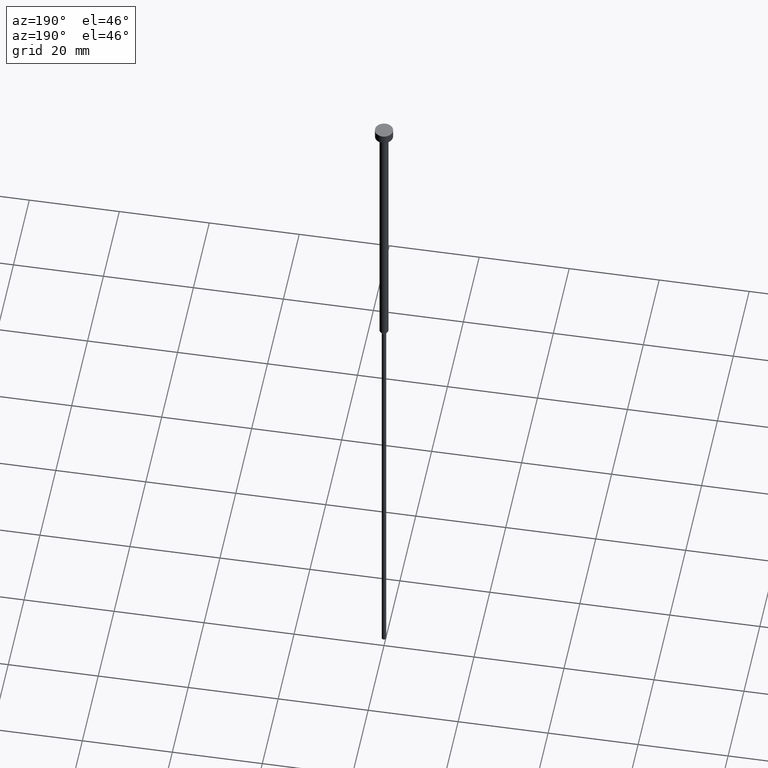
[diagram: clean part render]
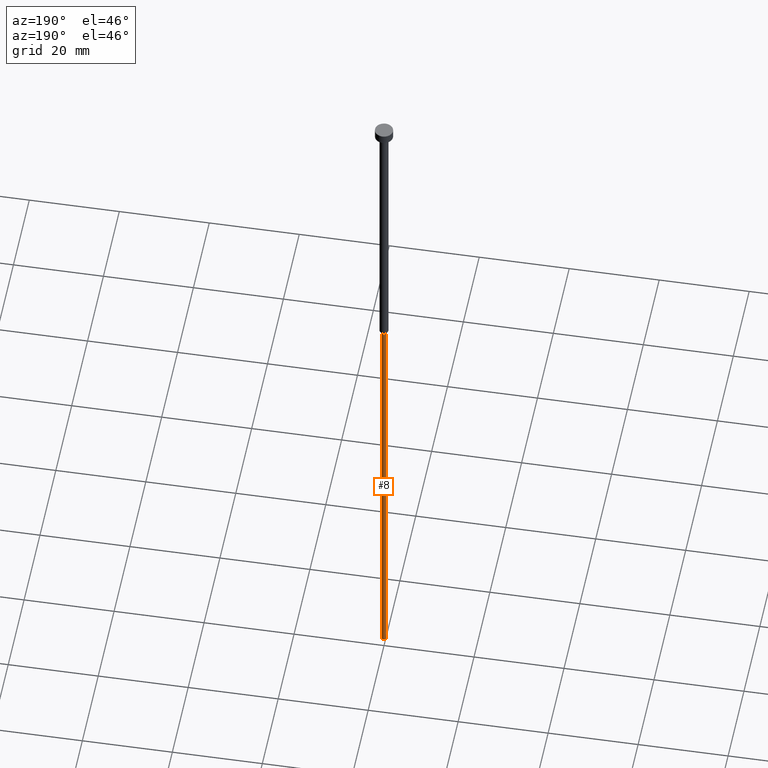
[diagram: same view with one face highlighted and labeled with its STEP entity id]
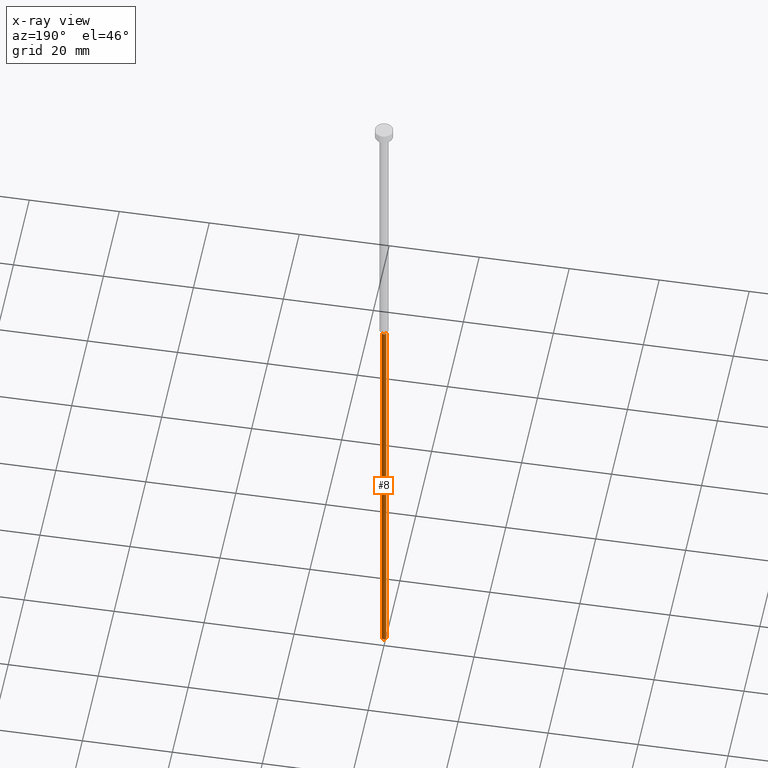
[diagram: x-ray of the same camera — body ghosted, the highlighted face saturated]
A machine part, auxiliary view. The second image highlights one B-rep face of the part: STEP entity #8.
The next image is the same camera in x-ray: the body ghosted, the highlighted face saturated — about 0% of this face is hidden behind the body in this view.
In plain terms, the highlighted cylindrical surface (edge-blend (fillet) strip) has radius 0.5 mm, axis along (-0, -0, 1).
Its self-contained STEP definition (entity closure, byte-faithful):
#3 = AXIS2_PLACEMENT_3D ( 'NONE', #47, #158, #269 ) ;
#8 = ADVANCED_FACE ( 'NONE', ( #301 ), #300, .T. ) ;
#19 = LINE ( 'NONE', #130, #311 ) ;
#36 = LINE ( 'NONE', #95, #260 ) ;
#39 = VERTEX_POINT ( 'NONE', #297 ) ;
#47 = CARTESIAN_POINT ( 'NONE',  ( 0.000000000000000000, 0.000000000000000000, -63.86602540378444104 ) ) ;
#57 = DIRECTION ( 'NONE',  ( -0.000000000000000000, -0.000000000000000000, 1.000000000000000000 ) ) ;
#95 = CARTESIAN_POINT ( 'NONE',  ( 0.5000000000000000000, 0.000000000000000000, 0.000000000000000000 ) ) ;
#96 = ORIENTED_EDGE ( 'NONE', *, *, #222, .T. ) ;
#104 = DIRECTION ( 'NONE',  ( -0.000000000000000000, -0.000000000000000000, 1.000000000000000000 ) ) ;
#109 = CARTESIAN_POINT ( 'NONE',  ( 0.000000000000000000, 0.000000000000000000, 0.000000000000000000 ) ) ;
#124 = VERTEX_POINT ( 'NONE', #243 ) ;
#130 = CARTESIAN_POINT ( 'NONE',  ( -0.5000000000000000000, 6.123233995736766036E-17, 0.000000000000000000 ) ) ;
#140 = EDGE_CURVE ( 'NONE', #124, #234, #291, .T. ) ;
#143 = EDGE_CURVE ( 'NONE', #289, #234, #19, .T. ) ;
#144 = CARTESIAN_POINT ( 'NONE',  ( 0.000000000000000000, 0.000000000000000000, -160.0000000000000000 ) ) ;
#154 = AXIS2_PLACEMENT_3D ( 'NONE', #109, #104, #191 ) ;
#158 = DIRECTION ( 'NONE',  ( -0.000000000000000000, -0.000000000000000000, 1.000000000000000000 ) ) ;
#168 = CARTESIAN_POINT ( 'NONE',  ( -0.5000000000000000000, 6.123233995736766036E-17, -160.0000000000000000 ) ) ;
#191 = DIRECTION ( 'NONE',  ( 1.000000000000000000, 0.000000000000000000, 0.000000000000000000 ) ) ;
#202 = DIRECTION ( 'NONE',  ( 1.000000000000000000, 0.000000000000000000, 0.000000000000000000 ) ) ;
#205 = EDGE_LOOP ( 'NONE', ( #96, #319, #207, #221 ) ) ;
#207 = ORIENTED_EDGE ( 'NONE', *, *, #140, .F. ) ;
#216 = EDGE_CURVE ( 'NONE', #39, #124, #36, .T. ) ;
#221 = ORIENTED_EDGE ( 'NONE', *, *, #216, .F. ) ;
#222 = EDGE_CURVE ( 'NONE', #39, #289, #249, .T. ) ;
#234 = VERTEX_POINT ( 'NONE', #253 ) ;
#243 = CARTESIAN_POINT ( 'NONE',  ( 0.5000000000000000000, 0.000000000000000000, -63.86602540378444104 ) ) ;
#249 = CIRCLE ( 'NONE', #340, 0.5000000000000000000 ) ;
#253 = CARTESIAN_POINT ( 'NONE',  ( -0.5000000000000000000, 6.123233995736766036E-17, -63.86602540378444104 ) ) ;
#260 = VECTOR ( 'NONE', #343, 1000.000000000000000 ) ;
#269 = DIRECTION ( 'NONE',  ( 1.000000000000000000, 0.000000000000000000, 0.000000000000000000 ) ) ;
#289 = VERTEX_POINT ( 'NONE', #168 ) ;
#291 = CIRCLE ( 'NONE', #3, 0.5000000000000000000 ) ;
#297 = CARTESIAN_POINT ( 'NONE',  ( 0.5000000000000000000, 0.000000000000000000, -160.0000000000000000 ) ) ;
#300 = CYLINDRICAL_SURFACE ( 'NONE', #154, 0.5000000000000000000 ) ;
#301 = FACE_OUTER_BOUND ( 'NONE', #205, .T. ) ;
#311 = VECTOR ( 'NONE', #352, 1000.000000000000000 ) ;
#319 = ORIENTED_EDGE ( 'NONE', *, *, #143, .T. ) ;
#340 = AXIS2_PLACEMENT_3D ( 'NONE', #144, #57, #202 ) ;
#343 = DIRECTION ( 'NONE',  ( -0.000000000000000000, -0.000000000000000000, 1.000000000000000000 ) ) ;
#352 = DIRECTION ( 'NONE',  ( -0.000000000000000000, -0.000000000000000000, 1.000000000000000000 ) ) ;